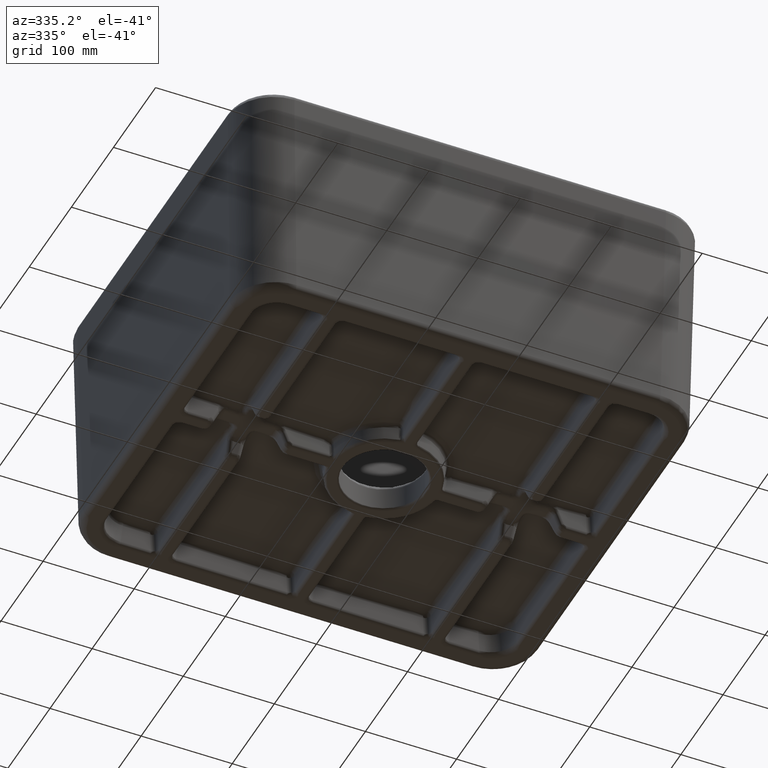
[diagram: clean part render]
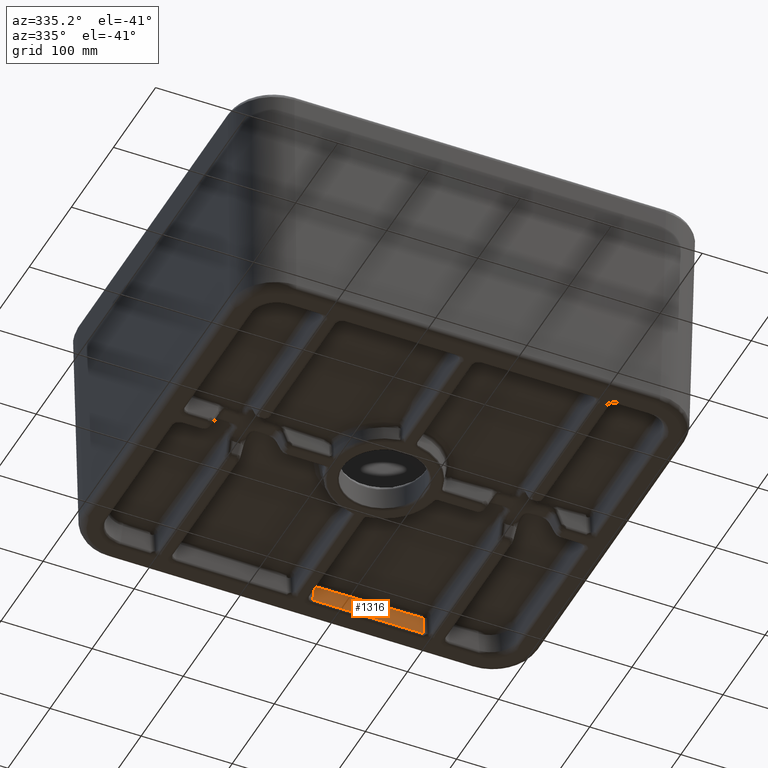
[diagram: same view with one face highlighted and labeled with its STEP entity id]
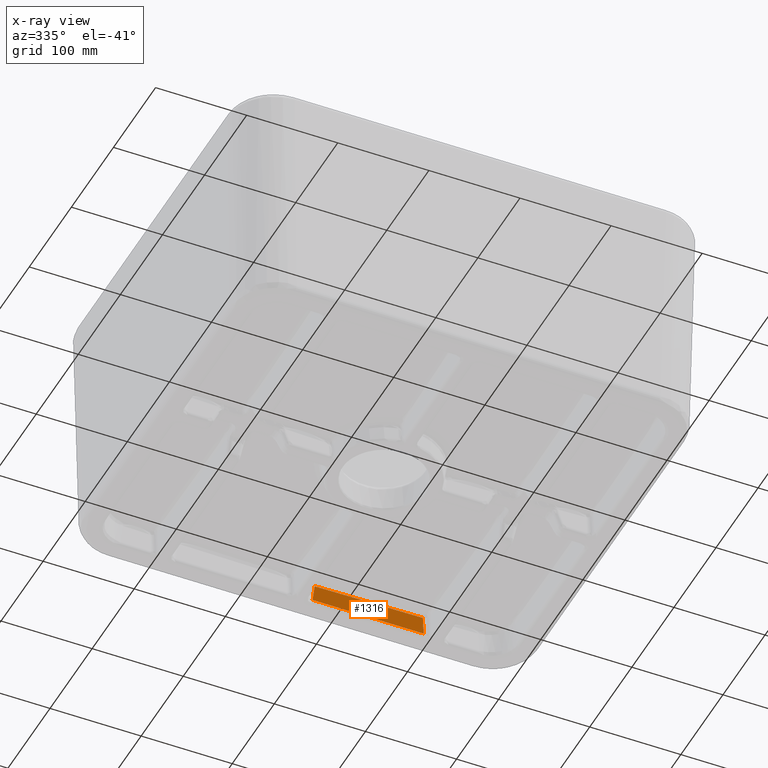
[diagram: x-ray of the same camera — body ghosted, the highlighted face saturated]
A machine part, auxiliary view. The second image highlights one B-rep face of the part: STEP entity #1316.
The next image is the same camera in x-ray: the body ghosted, the highlighted face saturated — about 0% of this face is hidden behind the body in this view.
In plain terms, the highlighted planar face has unit normal (0, 0.9962, 0.0872).
Its self-contained STEP definition (entity closure, byte-faithful):
#869=FACE_OUTER_BOUND('',#1835,.T.);
#1316=ADVANCED_FACE('',(#869),#1735,.F.);
#1735=PLANE('',#6938);
#1835=EDGE_LOOP('',(#3110,#3111,#3112,#3113));
#2356=B_SPLINE_CURVE_WITH_KNOTS('',3,(#10683,#10684,#10685,#10686),
 .UNSPECIFIED.,.F.,.F.,(4,4),(0.,1.),.UNSPECIFIED.);
#3110=ORIENTED_EDGE('',*,*,#5720,.F.);
#3111=ORIENTED_EDGE('',*,*,#5721,.F.);
#3112=ORIENTED_EDGE('',*,*,#5722,.F.);
#3113=ORIENTED_EDGE('',*,*,#5723,.F.);
#5090=VERTEX_POINT('',#10677);
#5091=VERTEX_POINT('',#10678);
#5092=VERTEX_POINT('',#10680);
#5093=VERTEX_POINT('',#10682);
#5720=EDGE_CURVE('',#5090,#5091,#6549,.T.);
#5721=EDGE_CURVE('',#5092,#5090,#6550,.T.);
#5722=EDGE_CURVE('',#5093,#5092,#6551,.T.);
#5723=EDGE_CURVE('',#5091,#5093,#2356,.T.);
#6549=LINE('',#10676,#6744);
#6550=LINE('',#10679,#6745);
#6551=LINE('',#10681,#6746);
#6744=VECTOR('',#7739,1.);
#6745=VECTOR('',#7740,1.);
#6746=VECTOR('',#7741,1.);
#6938=AXIS2_PLACEMENT_3D('',#10687,#7742,#7743);
#7739=DIRECTION('',(0.0868265938642475,-0.0868265938642475,0.992432509138967));
#7740=DIRECTION('',(-1.,0.,0.));
#7741=DIRECTION('',(0.0868265938642475,0.0868265938642475,-0.992432509138967));
#7742=DIRECTION('',(0.,0.996194698091746,0.0871557427476581));
#7743=DIRECTION('',(0.,0.0871557427476581,-0.996194698091746));
#10676=CARTESIAN_POINT('',(396.859994356732,426.474176428044,-227.79961028312));
#10677=CARTESIAN_POINT('',(394.967074896916,428.367095887861,-249.435778713738));
#10678=CARTESIAN_POINT('',(396.492643307601,426.841527477176,-231.998451988168));
#10679=CARTESIAN_POINT('',(394.567757276544,428.367095887861,-249.435778713738));
#10680=CARTESIAN_POINT('',(516.841932678306,428.367095887861,-249.435778713738));
#10681=CARTESIAN_POINT('',(517.286311317319,428.811474526874,-254.51504979989));
#10682=CARTESIAN_POINT('',(515.190169804597,426.715333014152,-230.556042675486));
#10683=CARTESIAN_POINT('',(396.492643307601,426.841527477176,-231.998451988168));
#10684=CARTESIAN_POINT('',(436.06302454923,426.831893693232,-231.88833733381));
#10685=CARTESIAN_POINT('',(475.628070562321,426.784140477962,-231.342515585651));
#10686=CARTESIAN_POINT('',(515.190169804597,426.715333014152,-230.556042675486));
#10687=CARTESIAN_POINT('',(28.4335864917673,428.766413508233,-254.));